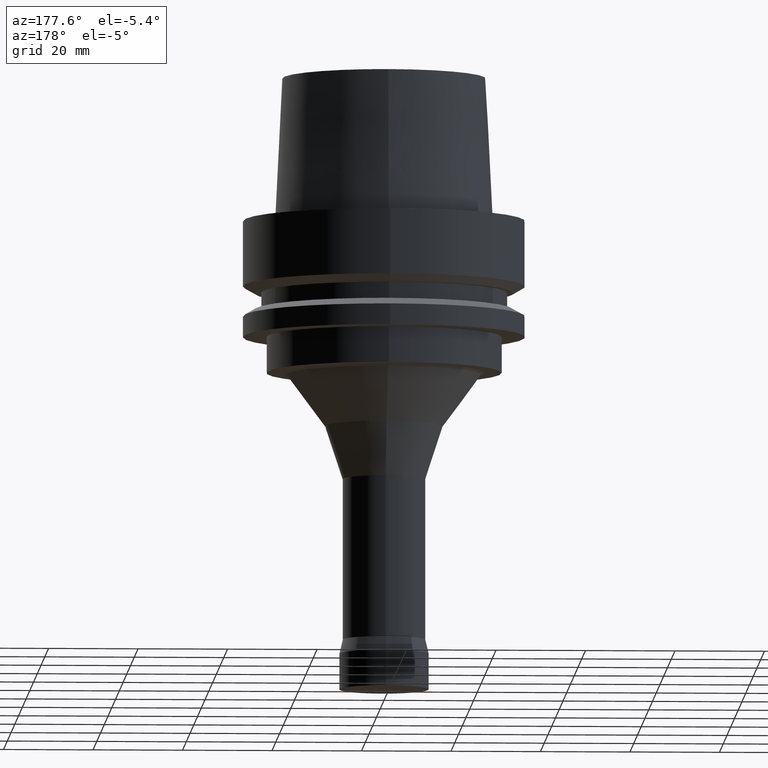
[diagram: clean part render]
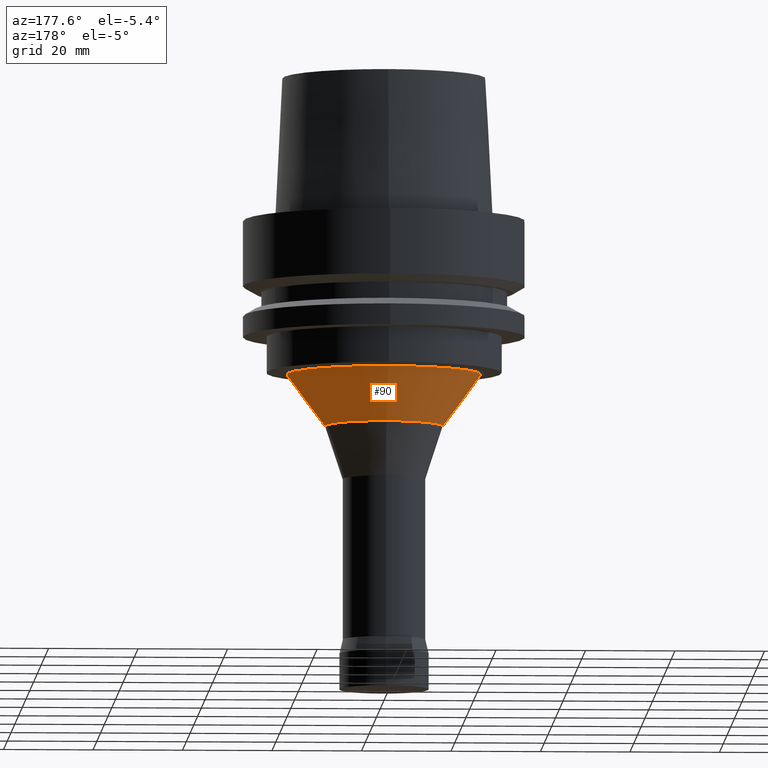
[diagram: same view with one face highlighted and labeled with its STEP entity id]
A machine part, auxiliary view. The second image highlights one B-rep face of the part: STEP entity #90.
In plain terms, the highlighted conical surface has half-angle 36.46 deg.
Its self-contained STEP definition (entity closure, byte-faithful):
#90=ADVANCED_FACE('',(#139,#140),#141,.T.);
#139=FACE_BOUND('',#197,.T.);
#140=FACE_BOUND('',#198,.T.);
#141=CONICAL_SURFACE('',#199,17.43010142,0.636340102093993);
#197=EDGE_LOOP('',(#285));
#198=EDGE_LOOP('',(#286));
#199=AXIS2_PLACEMENT_3D('',#287,#288,#289);
#285=ORIENTED_EDGE('',*,*,#325,.F.);
#286=ORIENTED_EDGE('',*,*,#324,.T.);
#287=CARTESIAN_POINT('',(2.46024871818063E-015,4.92049743636126E-015,-40.178910685));
#288=DIRECTION('',(-6.12323399573677E-017,-1.22464679914735E-016,1.0));
#289=DIRECTION('',(-1.23259516440783E-032,1.0,1.22464679914735E-016));
#324=EDGE_CURVE('',#357,#357,#358,.T.);
#325=EDGE_CURVE('',#359,#359,#360,.T.);
#357=VERTEX_POINT('',#395);
#358=CIRCLE('',#396,21.69572394);
#359=VERTEX_POINT('',#397);
#360=CIRCLE('',#398,13.1644789);
#395=CARTESIAN_POINT('',(2.10674422105437E-015,21.69572394,-34.40574413));
#396=AXIS2_PLACEMENT_3D('',#447,#448,#449);
#397=CARTESIAN_POINT('',(2.8137532153069E-015,13.1644789,-45.95207724));
#398=AXIS2_PLACEMENT_3D('',#450,#451,#452);
#447=CARTESIAN_POINT('',(2.10674422105437E-015,4.21348844210873E-015,-34.40574413));
#448=DIRECTION('',(6.12323399573677E-017,1.22464679914735E-016,-1.0));
#449=DIRECTION('',(-1.23259516440783E-032,1.0,1.22464679914735E-016));
#450=CARTESIAN_POINT('',(2.8137532153069E-015,5.62750643061379E-015,-45.95207724));
#451=DIRECTION('',(6.12323399573677E-017,1.22464679914735E-016,-1.0));
#452=DIRECTION('',(-1.23259516440783E-032,1.0,1.22464679914735E-016));